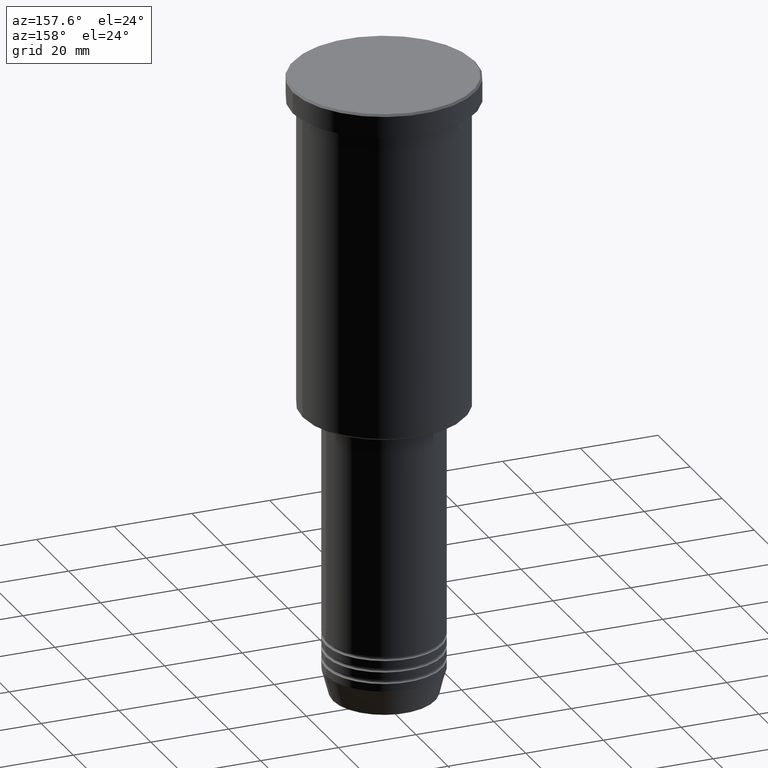
[diagram: clean part render]
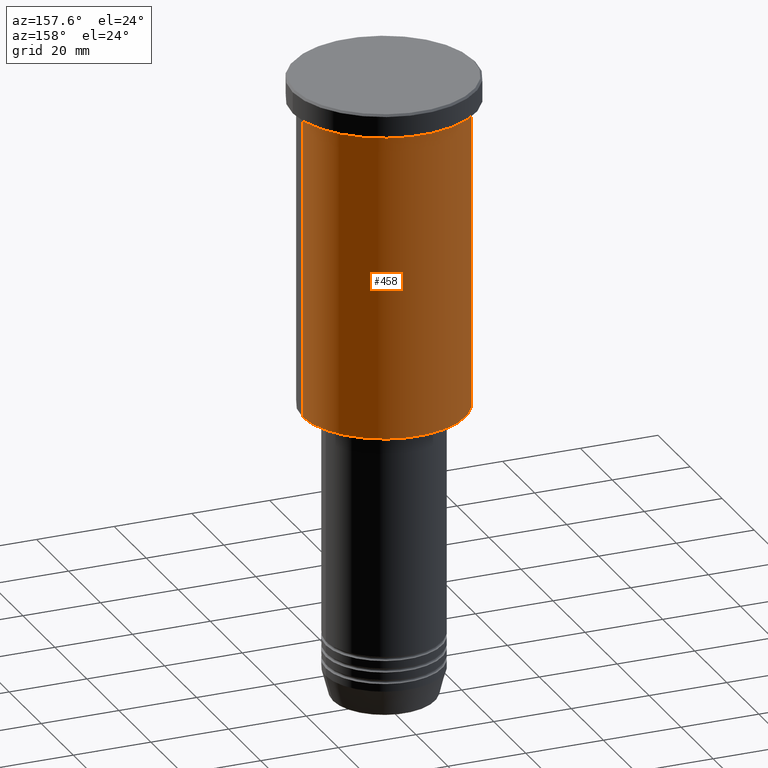
[diagram: same view with one face highlighted and labeled with its STEP entity id]
A machine part, auxiliary view. The second image highlights one B-rep face of the part: STEP entity #458.
In plain terms, the highlighted cylindrical surface (partial cylindrical patch) has radius 21 mm, axis along (-0, -0, 1).
Its self-contained STEP definition (entity closure, byte-faithful):
#45 = ORIENTED_EDGE ( 'NONE', *, *, #738, .T. ) ;
#55 = DIRECTION ( 'NONE',  ( 1.000000000000000000, 0.000000000000000000, 0.000000000000000000 ) ) ;
#56 = VERTEX_POINT ( 'NONE', #1085 ) ;
#76 = CIRCLE ( 'NONE', #249, 21.00000000000000000 ) ;
#115 = CARTESIAN_POINT ( 'NONE',  ( -21.00000000000000000, 2.571758278209441661E-15, -85.49999999999998579 ) ) ;
#120 = AXIS2_PLACEMENT_3D ( 'NONE', #1131, #124, #55 ) ;
#124 = DIRECTION ( 'NONE',  ( -0.000000000000000000, -0.000000000000000000, 1.000000000000000000 ) ) ;
#125 = EDGE_LOOP ( 'NONE', ( #45, #733, #693, #556 ) ) ;
#140 = CARTESIAN_POINT ( 'NONE',  ( -21.00000000000000000, 2.571758278209441661E-15, 0.000000000000000000 ) ) ;
#158 = CIRCLE ( 'NONE', #941, 21.00000000000000000 ) ;
#216 = CARTESIAN_POINT ( 'NONE',  ( -21.00000000000000000, 2.571758278209441661E-15, -6.999999999999994671 ) ) ;
#230 = VECTOR ( 'NONE', #1096, 1000.000000000000000 ) ;
#231 = DIRECTION ( 'NONE',  ( 1.000000000000000000, 0.000000000000000000, 0.000000000000000000 ) ) ;
#249 = AXIS2_PLACEMENT_3D ( 'NONE', #1125, #1013, #231 ) ;
#258 = CARTESIAN_POINT ( 'NONE',  ( 0.000000000000000000, 0.000000000000000000, -85.49999999999998579 ) ) ;
#321 = VERTEX_POINT ( 'NONE', #804 ) ;
#373 = LINE ( 'NONE', #728, #230 ) ;
#407 = CYLINDRICAL_SURFACE ( 'NONE', #120, 21.00000000000000000 ) ;
#458 = ADVANCED_FACE ( 'NONE', ( #1108 ), #407, .T. ) ;
#515 = DIRECTION ( 'NONE',  ( -0.000000000000000000, -0.000000000000000000, 1.000000000000000000 ) ) ;
#516 = VERTEX_POINT ( 'NONE', #216 ) ;
#556 = ORIENTED_EDGE ( 'NONE', *, *, #1045, .F. ) ;
#578 = LINE ( 'NONE', #140, #1074 ) ;
#591 = EDGE_CURVE ( 'NONE', #1077, #516, #578, .T. ) ;
#693 = ORIENTED_EDGE ( 'NONE', *, *, #809, .F. ) ;
#728 = CARTESIAN_POINT ( 'NONE',  ( 21.00000000000000000, 0.000000000000000000, 0.000000000000000000 ) ) ;
#733 = ORIENTED_EDGE ( 'NONE', *, *, #591, .T. ) ;
#738 = EDGE_CURVE ( 'NONE', #321, #1077, #158, .T. ) ;
#804 = CARTESIAN_POINT ( 'NONE',  ( 21.00000000000000000, 0.000000000000000000, -85.49999999999998579 ) ) ;
#809 = EDGE_CURVE ( 'NONE', #56, #516, #76, .T. ) ;
#850 = DIRECTION ( 'NONE',  ( -0.000000000000000000, -0.000000000000000000, 1.000000000000000000 ) ) ;
#871 = DIRECTION ( 'NONE',  ( -1.000000000000000000, 0.000000000000000000, 0.000000000000000000 ) ) ;
#941 = AXIS2_PLACEMENT_3D ( 'NONE', #258, #515, #871 ) ;
#1013 = DIRECTION ( 'NONE',  ( -0.000000000000000000, -0.000000000000000000, 1.000000000000000000 ) ) ;
#1045 = EDGE_CURVE ( 'NONE', #321, #56, #373, .T. ) ;
#1074 = VECTOR ( 'NONE', #850, 1000.000000000000000 ) ;
#1077 = VERTEX_POINT ( 'NONE', #115 ) ;
#1085 = CARTESIAN_POINT ( 'NONE',  ( 21.00000000000000000, 0.000000000000000000, -6.999999999999994671 ) ) ;
#1096 = DIRECTION ( 'NONE',  ( -0.000000000000000000, -0.000000000000000000, 1.000000000000000000 ) ) ;
#1108 = FACE_OUTER_BOUND ( 'NONE', #125, .T. ) ;
#1125 = CARTESIAN_POINT ( 'NONE',  ( 0.000000000000000000, 0.000000000000000000, -6.999999999999994671 ) ) ;
#1131 = CARTESIAN_POINT ( 'NONE',  ( 0.000000000000000000, 0.000000000000000000, 0.000000000000000000 ) ) ;